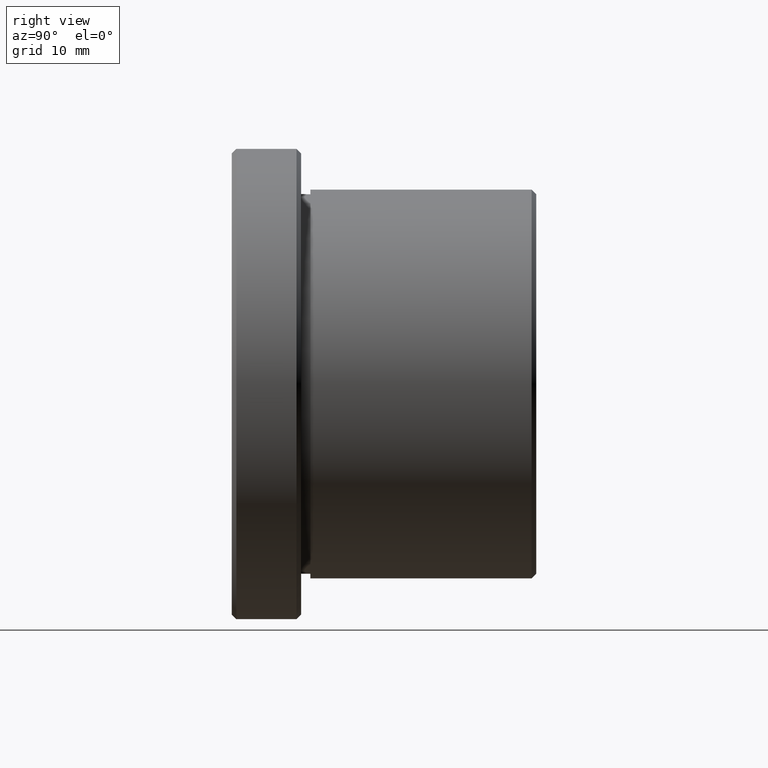
[diagram: clean part render]
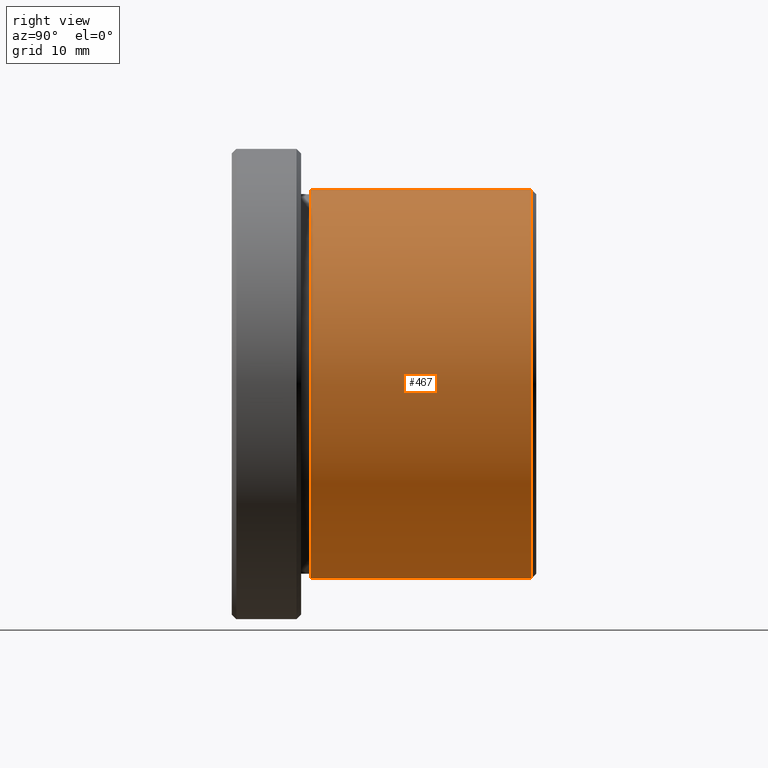
[diagram: same view with one face highlighted and labeled with its STEP entity id]
A machine part, right view. The second image highlights one B-rep face of the part: STEP entity #467.
In plain terms, the highlighted cylindrical surface (partial cylindrical patch) has radius 21 mm, axis along (-0, 1, -0).
Its self-contained STEP definition (entity closure, byte-faithful):
#1 = ORIENTED_EDGE ( 'NONE', *, *, #700, .F. ) ;
#30 = CIRCLE ( 'NONE', #598, 21.00000000000000700 ) ;
#40 = CARTESIAN_POINT ( 'NONE',  ( 0.0000000000000000000, 2.642854174566895900, 21.00000000000000700 ) ) ;
#42 = VERTEX_POINT ( 'NONE', #673 ) ;
#65 = EDGE_LOOP ( 'NONE', ( #551, #188, #839, #1 ) ) ;
#95 = AXIS2_PLACEMENT_3D ( 'NONE', #578, #502, #157 ) ;
#105 = EDGE_CURVE ( 'NONE', #42, #865, #323, .T. ) ;
#142 = DIRECTION ( 'NONE',  ( -0.0000000000000000000, 1.000000000000000000, -0.0000000000000000000 ) ) ;
#145 = DIRECTION ( 'NONE',  ( -0.0000000000000000000, 1.000000000000000000, -0.0000000000000000000 ) ) ;
#157 = DIRECTION ( 'NONE',  ( 0.0000000000000000000, 0.0000000000000000000, 1.000000000000000000 ) ) ;
#173 = LINE ( 'NONE', #560, #332 ) ;
#179 = CARTESIAN_POINT ( 'NONE',  ( 2.571758278209442100E-015, 26.54285417456689100, -21.00000000000000400 ) ) ;
#188 = ORIENTED_EDGE ( 'NONE', *, *, #267, .T. ) ;
#232 = VECTOR ( 'NONE', #145, 1000.000000000000000 ) ;
#266 = DIRECTION ( 'NONE',  ( 0.0000000000000000000, 0.0000000000000000000, 1.000000000000000000 ) ) ;
#267 = EDGE_CURVE ( 'NONE', #440, #865, #173, .T. ) ;
#294 = CARTESIAN_POINT ( 'NONE',  ( 0.0000000000000000000, 44.59859774529311900, 21.00000000000000400 ) ) ;
#323 = CIRCLE ( 'NONE', #405, 21.00000000000000400 ) ;
#332 = VECTOR ( 'NONE', #489, 1000.000000000000000 ) ;
#366 = FACE_OUTER_BOUND ( 'NONE', #65, .T. ) ;
#405 = AXIS2_PLACEMENT_3D ( 'NONE', #680, #687, #266 ) ;
#410 = LINE ( 'NONE', #294, #232 ) ;
#420 = EDGE_CURVE ( 'NONE', #600, #440, #30, .T. ) ;
#423 = CARTESIAN_POINT ( 'NONE',  ( 2.571758278209442400E-015, 2.642854174566895900, -21.00000000000000700 ) ) ;
#440 = VERTEX_POINT ( 'NONE', #423 ) ;
#467 = ADVANCED_FACE ( 'NONE', ( #366 ), #611, .T. ) ;
#489 = DIRECTION ( 'NONE',  ( -0.0000000000000000000, 1.000000000000000000, -0.0000000000000000000 ) ) ;
#502 = DIRECTION ( 'NONE',  ( -0.0000000000000000000, 1.000000000000000000, -0.0000000000000000000 ) ) ;
#551 = ORIENTED_EDGE ( 'NONE', *, *, #420, .T. ) ;
#560 = CARTESIAN_POINT ( 'NONE',  ( 2.571758278209442100E-015, 44.59859774529311900, -21.00000000000000400 ) ) ;
#578 = CARTESIAN_POINT ( 'NONE',  ( 0.0000000000000000000, 44.59859774529311900, 0.0000000000000000000 ) ) ;
#598 = AXIS2_PLACEMENT_3D ( 'NONE', #895, #142, #840 ) ;
#600 = VERTEX_POINT ( 'NONE', #40 ) ;
#611 = CYLINDRICAL_SURFACE ( 'NONE', #95, 21.00000000000000400 ) ;
#673 = CARTESIAN_POINT ( 'NONE',  ( 0.0000000000000000000, 26.54285417456689100, 21.00000000000000400 ) ) ;
#680 = CARTESIAN_POINT ( 'NONE',  ( 0.0000000000000000000, 26.54285417456689100, 0.0000000000000000000 ) ) ;
#687 = DIRECTION ( 'NONE',  ( -0.0000000000000000000, 1.000000000000000000, -0.0000000000000000000 ) ) ;
#700 = EDGE_CURVE ( 'NONE', #600, #42, #410, .T. ) ;
#839 = ORIENTED_EDGE ( 'NONE', *, *, #105, .F. ) ;
#840 = DIRECTION ( 'NONE',  ( 0.0000000000000000000, 0.0000000000000000000, 1.000000000000000000 ) ) ;
#865 = VERTEX_POINT ( 'NONE', #179 ) ;
#895 = CARTESIAN_POINT ( 'NONE',  ( 0.0000000000000000000, 2.642854174566895900, 0.0000000000000000000 ) ) ;